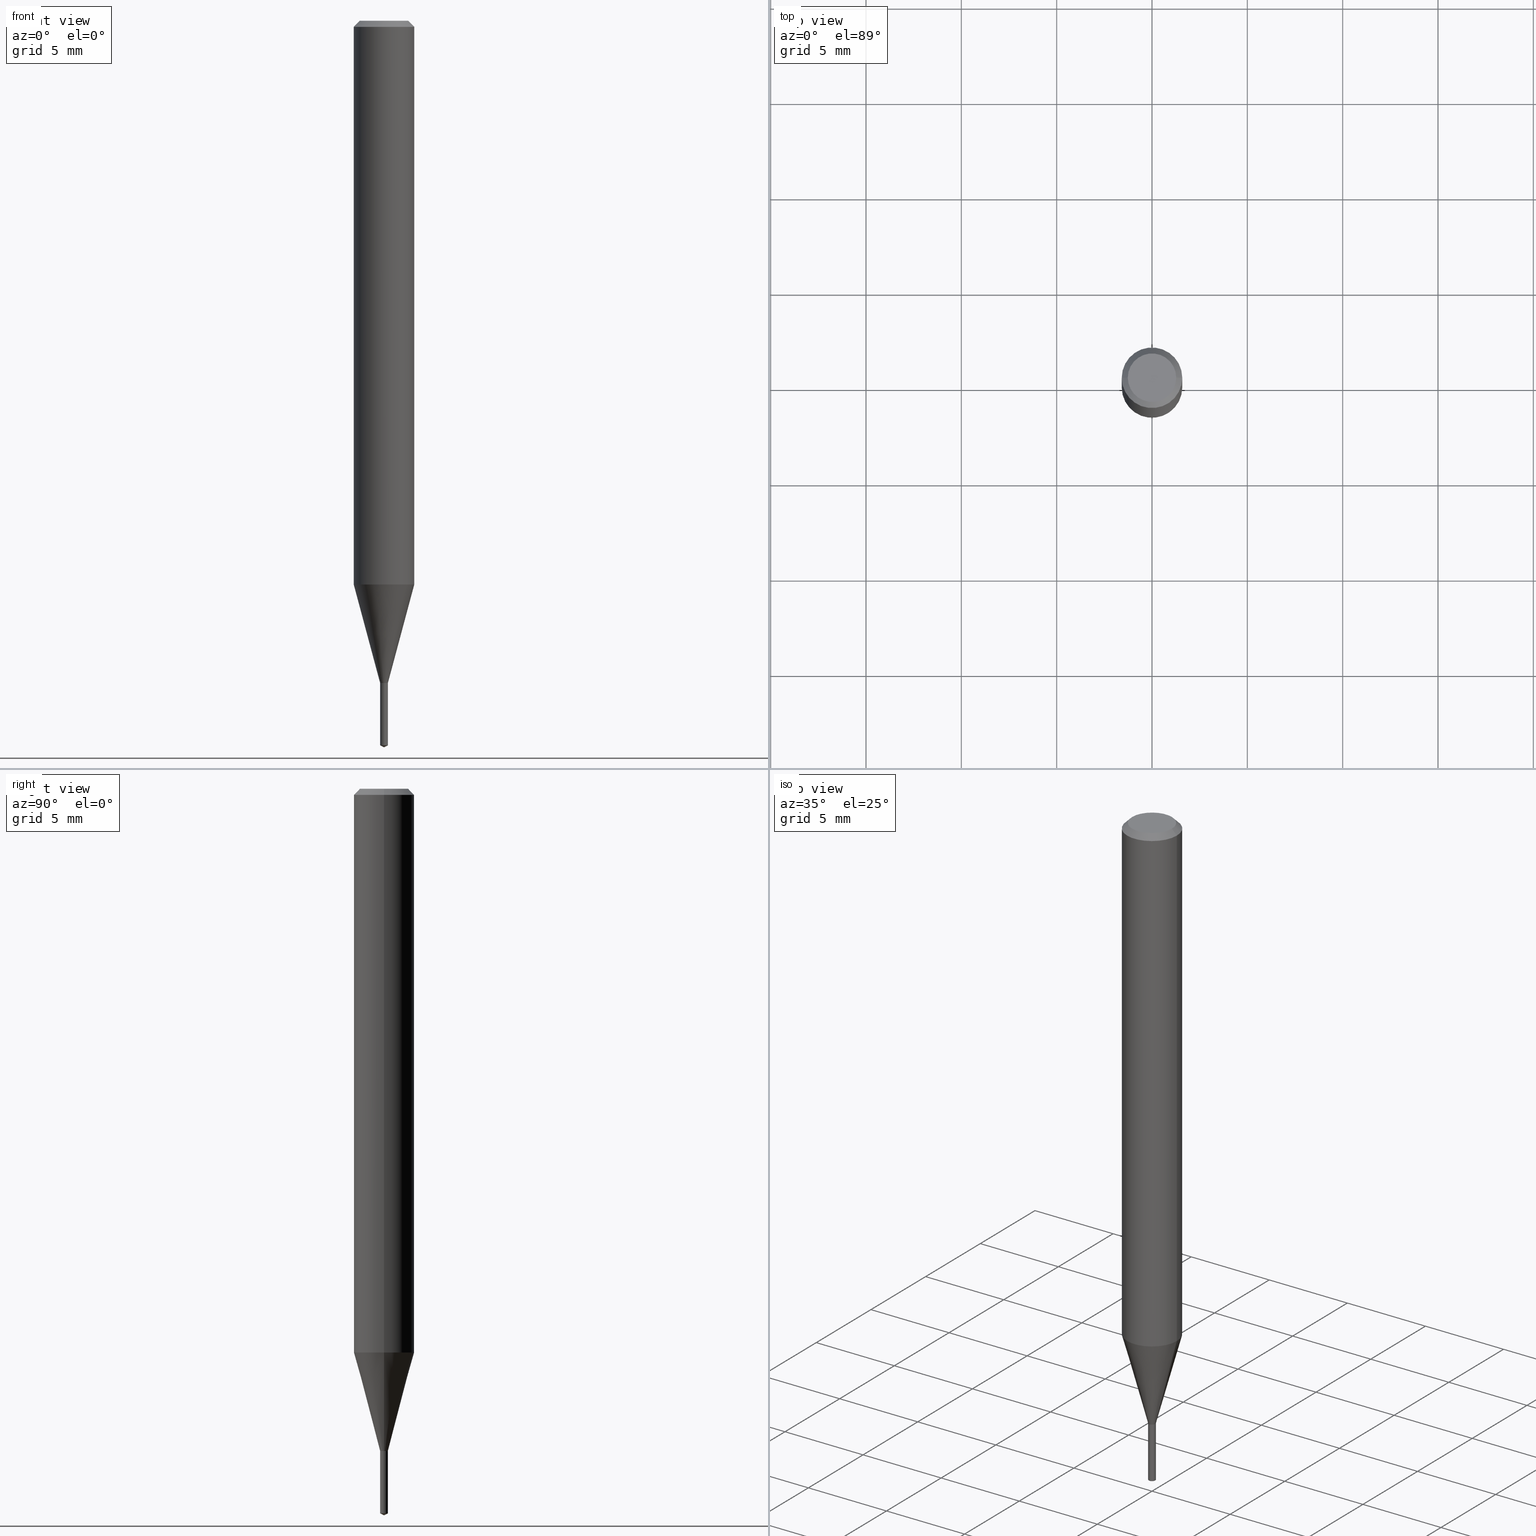
[diagram: canonical four-view strip — front | top / right | iso, engineering-drawing reading convention]
A machine part, canonical four-view strip (front | top / right | iso — engineering-drawing reading convention). The complete STEP part file that produces these views, byte-faithful:
ISO-10303-21;
HEADER;
FILE_DESCRIPTION (( 'STEP AP203' ),
    '1' );
FILE_NAME ('07117.STEP',
    '2024-04-23T19:33:08',
    ( '' ),
    ( '' ),
    'SwSTEP 2.0',
    'SolidWorks 2023',
    '' );
FILE_SCHEMA (( 'CONFIG_CONTROL_DESIGN' ));
ENDSEC;

DATA;
#1 = PRODUCT_DEFINITION ( 'UNKNOWN', '', #385, #382 ) ;
#2 = LINE ( 'NONE', #108, #76 ) ;
#3 = AXIS2_PLACEMENT_3D ( 'NONE', #303, #451, #258 ) ;
#4 = EDGE_CURVE ( 'NONE', #106, #158, #163, .T. ) ;
#5 = EDGE_LOOP ( 'NONE', ( #293, #153 ) ) ;
#6 = SHAPE_DEFINITION_REPRESENTATION ( #213, #175 ) ;
#7 = FACE_OUTER_BOUND ( 'NONE', #194, .T. ) ;
#8 = ORIENTED_EDGE ( 'NONE', *, *, #47, .F. ) ;
#9 = EDGE_CURVE ( 'NONE', #73, #483, #321, .T. ) ;
#10 = CYLINDRICAL_SURFACE ( 'NONE', #359, 0.06250000000000006939 ) ;
#11 = ORIENTED_EDGE ( 'NONE', *, *, #204, .F. ) ;
#12 = LENGTH_MEASURE_WITH_UNIT ( LENGTH_MEASURE( 0.02539999999999999897 ), #431 );
#13 = VECTOR ( 'NONE', #23, 39.37007874015748854 ) ;
#14 = AXIS2_PLACEMENT_3D ( 'NONE', #101, #183, #331 ) ;
#15 = ORIENTED_EDGE ( 'NONE', *, *, #365, .F. ) ;
#16 = ADVANCED_FACE ( 'NONE', ( #169 ), #290, .F. ) ;
#17 = APPLICATION_PROTOCOL_DEFINITION ( 'international standard', 'config_control_design', 1994, #456 ) ;
#18 = ORIENTED_EDGE ( 'NONE', *, *, #27, .T. ) ;
#19 = MECHANICAL_CONTEXT ( 'NONE', #456, 'mechanical' ) ;
#20 = DIRECTION ( 'NONE',  ( -2.445468806185136597E-29, 3.491481338843145583E-15, 1.000000000000000000 ) ) ;
#21 = PRODUCT ( '07117', '07117', '', ( #19 ) ) ;
#22 = CIRCLE ( 'NONE', #3, 0.04999999999999999584 ) ;
#23 = DIRECTION ( 'NONE',  ( 0.2588190451025279559, 1.565188264969569508E-15, 0.9659258262890664248 ) ) ;
#24 = SECURITY_CLASSIFICATION ( '', '', #372 ) ;
#25 = APPLICATION_PROTOCOL_DEFINITION ( 'international standard', 'config_control_design', 1994, #470 ) ;
#26 = CARTESIAN_POINT ( 'NONE',  ( -0.008000000000000000167, -4.433027008824534851E-15, -1.204500000000000126 ) ) ;
#27 = EDGE_CURVE ( 'NONE', #158, #310, #257, .T. ) ;
#28 = DIRECTION ( 'NONE',  ( 1.000000000000000000, -6.982962677686211490E-15, 0.000000000000000000 ) ) ;
#29 = DIRECTION ( 'NONE',  ( -2.445468806185136597E-29, 3.491481338843145583E-15, 1.000000000000000000 ) ) ;
#30 = CIRCLE ( 'NONE', #346, 0.008000000000000001901 ) ;
#31 = DIRECTION ( 'NONE',  ( -2.442064184349959249E-29, 3.496356951090160448E-15, 1.000000000000000000 ) ) ;
#32 = DIRECTION ( 'NONE',  ( -6.982962677686266711E-15, -1.000000000000000000, 0.000000000000000000 ) ) ;
#33 = FACE_OUTER_BOUND ( 'NONE', #246, .T. ) ;
#34 = CIRCLE ( 'NONE', #398, 0.008000000000000000167 ) ;
#35 = COORDINATED_UNIVERSAL_TIME_OFFSET ( 5, 0, .BEHIND. ) ;
#36 = DIRECTION ( 'NONE',  ( -2.445468806185136597E-29, 3.491481338843145583E-15, 1.000000000000000000 ) ) ;
#37 = DIRECTION ( 'NONE',  ( -2.445468806185136597E-29, 3.491481338843145583E-15, 1.000000000000000000 ) ) ;
#38 = CC_DESIGN_PERSON_AND_ORGANIZATION_ASSIGNMENT ( #205, #125, ( #1 ) ) ;
#39 = CARTESIAN_POINT ( 'NONE',  ( 0.000000000000000000, 0.000000000000000000, 0.000000000000000000 ) ) ;
#40 = ORIENTED_EDGE ( 'NONE', *, *, #147, .F. ) ;
#41 = LINE ( 'NONE', #202, #260 ) ;
#42 = VERTEX_POINT ( 'NONE', #397 ) ;
#43 = AXIS2_PLACEMENT_3D ( 'NONE', #445, #334, #487 ) ;
#44 = CALENDAR_DATE ( 2024, 23, 4 ) ;
#45 = CC_DESIGN_APPROVAL ( #250, ( #1 ) ) ;
#46 = CARTESIAN_POINT ( 'NONE',  ( 0.008000000000000000167, -5.586370142149013566E-17, 3.900941420636748599E-31 ) ) ;
#47 = EDGE_CURVE ( 'NONE', #316, #279, #137, .T. ) ;
#48 = DIRECTION ( 'NONE',  ( -2.445468806185136597E-29, 3.491481338843145583E-15, 1.000000000000000000 ) ) ;
#49 = CALENDAR_DATE ( 2024, 23, 4 ) ;
#50 = DIRECTION ( 'NONE',  ( -2.445468806185136597E-29, 3.491481338843145583E-15, 1.000000000000000000 ) ) ;
#51 = EDGE_LOOP ( 'NONE', ( #386, #348, #376, #369 ) ) ;
#52 = APPROVAL_DATE_TIME ( #86, #250 ) ;
#53 = ORIENTED_EDGE ( 'NONE', *, *, #466, .T. ) ;
#54 = CC_DESIGN_APPROVAL ( #177, ( #385 ) ) ;
#55 = ORIENTED_EDGE ( 'NONE', *, *, #272, .F. ) ;
#56 = EDGE_CURVE ( 'NONE', #244, #279, #373, .T. ) ;
#57 = CARTESIAN_POINT ( 'NONE',  ( 0.06250000000000006939, -4.364351673553921624E-16, 3.047610484872463374E-30 ) ) ;
#58 = CARTESIAN_POINT ( 'NONE',  ( -5.586370142145356456E-17, -0.008000000000005228623, -1.496269538734759985 ) ) ;
#59 = DIRECTION ( 'NONE',  ( -2.445468806185136597E-29, 3.491481338843145583E-15, 1.000000000000000000 ) ) ;
#60 = MANIFOLD_SOLID_BREP ( 'Body-Move/Copy2[2]', #144 ) ;
#61 = AXIS2_PLACEMENT_3D ( 'NONE', #66, #439, #400 ) ;
#62 = EDGE_CURVE ( 'NONE', #310, #408, #122, .T. ) ;
#63 = CARTESIAN_POINT ( 'NONE',  ( 2.946789911453089913E-29, -4.207235013305990839E-15, -1.205000000000000071 ) ) ;
#64 = AXIS2_PLACEMENT_3D ( 'NONE', #219, #37, #447 ) ;
#65 = DIRECTION ( 'NONE',  ( -2.442064184349959249E-29, 3.496356951090160842E-15, 1.000000000000000000 ) ) ;
#66 = CARTESIAN_POINT ( 'NONE',  ( 2.846533591678647944E-29, -4.064095559345990057E-15, -1.164003230987501691 ) ) ;
#67 = CARTESIAN_POINT ( 'NONE',  ( -0.06250000000000000000, -1.609780328190700812E-15, -0.01250000000000008570 ) ) ;
#68 = AXIS2_PLACEMENT_3D ( 'NONE', #261, #222, #368 ) ;
#69 = AXIS2_PLACEMENT_3D ( 'NONE', #200, #374, #262 ) ;
#70 = DIRECTION ( 'NONE',  ( -6.982962677686266711E-15, -1.000000000000000000, 0.000000000000000000 ) ) ;
#71 = ORIENTED_EDGE ( 'NONE', *, *, #234, .T. ) ;
#72 = DIRECTION ( 'NONE',  ( -2.442064184349959249E-29, 3.496356951090160448E-15, 1.000000000000000000 ) ) ;
#73 = VERTEX_POINT ( 'NONE', #363 ) ;
#74 = CARTESIAN_POINT ( 'NONE',  ( -5.586370142146066431E-17, -0.008000000000004208606, -1.205000000000000071 ) ) ;
#75 = ADVANCED_FACE ( 'NONE', ( #481 ), #178, .T. ) ;
#76 = VECTOR ( 'NONE', #152, 39.37007874015748143 ) ;
#77 = DIRECTION ( 'NONE',  ( -1.000000000000000000, 6.982962677686265922E-15, -4.876176775795935793E-29 ) ) ;
#78 = LINE ( 'NONE', #380, #208 ) ;
#79 = DIRECTION ( 'NONE',  ( -2.442064184349959249E-29, 3.496356951090160448E-15, 1.000000000000000000 ) ) ;
#80 = ORIENTED_EDGE ( 'NONE', *, *, #328, .F. ) ;
#81 = CALENDAR_DATE ( 2024, 23, 4 ) ;
#82 = FACE_OUTER_BOUND ( 'NONE', #332, .T. ) ;
#83 = ORIENTED_EDGE ( 'NONE', *, *, #4, .F. ) ;
#84 = LOCAL_TIME ( 15, 33, 8.000000000000000000, #304 ) ;
#85 = VERTEX_POINT ( 'NONE', #435 ) ;
#86 = DATE_AND_TIME ( #423, #267 ) ;
#87 = ORIENTED_EDGE ( 'NONE', *, *, #164, .T. ) ;
#88 = ORIENTED_EDGE ( 'NONE', *, *, #466, .F. ) ;
#89 = ADVANCED_FACE ( 'NONE', ( #131 ), #318, .F. ) ;
#90 = CARTESIAN_POINT ( 'NONE',  ( -8.265746106709734507E-48, 1.180129479067563789E-33, 3.380025165646692144E-19 ) ) ;
#91 = ORIENTED_EDGE ( 'NONE', *, *, #147, .T. ) ;
#92 = DIRECTION ( 'NONE',  ( -2.445468806185136597E-29, 3.491481338843145583E-15, 1.000000000000000000 ) ) ;
#93 = CARTESIAN_POINT ( 'NONE',  ( 0.000000000000000000, 0.000000000000000000, 0.000000000000000000 ) ) ;
#94 = DIRECTION ( 'NONE',  ( 1.000000000000000000, -6.982962677686265922E-15, 4.876194921942043128E-29 ) ) ;
#95 = DIRECTION ( 'NONE',  ( -2.445468806185136597E-29, 3.491481338843145583E-15, 1.000000000000000000 ) ) ;
#96 = AXIS2_PLACEMENT_3D ( 'NONE', #325, #412, #340 ) ;
#97 = DIRECTION ( 'NONE',  ( 1.000000000000000000, -6.982962677686271444E-15, 0.000000000000000000 ) ) ;
#98 = DIRECTION ( 'NONE',  ( -6.982962677686266711E-15, -1.000000000000000000, 3.520397390770520529E-15 ) ) ;
#99 = DIRECTION ( 'NONE',  ( 1.000000000000000000, -6.982962677686266711E-15, 0.000000000000000000 ) ) ;
#100 = PRODUCT_RELATED_PRODUCT_CATEGORY ( 'detail', '', ( #21 ) ) ;
#101 = CARTESIAN_POINT ( 'NONE',  ( 2.946789911453089913E-29, -4.207235013305990839E-15, -1.205000000000000071 ) ) ;
#102 = AXIS2_PLACEMENT_3D ( 'NONE', #299, #72, #378 ) ;
#103 = EDGE_LOOP ( 'NONE', ( #87, #249, #355, #275 ) ) ;
#104 = LOCAL_TIME ( 15, 33, 8.000000000000000000, #278 ) ;
#105 = DIRECTION ( 'NONE',  ( 1.000000000000000000, -6.982962677686268288E-15, 0.000000000000000000 ) ) ;
#106 = VERTEX_POINT ( 'NONE', #218 ) ;
#107 = ADVANCED_FACE ( 'NONE', ( #134 ), #352, .T. ) ;
#108 = CARTESIAN_POINT ( 'NONE',  ( 0.06250000000000000000, -4.724246415962603826E-16, -0.01250000000000008570 ) ) ;
#109 = ORIENTED_EDGE ( 'NONE', *, *, #365, .T. ) ;
#110 = DIRECTION ( 'NONE',  ( 6.439704144417008265E-15, 0.9063077870366490485, 0.4226182617407012732 ) ) ;
#111 = ORIENTED_EDGE ( 'NONE', *, *, #132, .T. ) ;
#112 = AXIS2_PLACEMENT_3D ( 'NONE', #489, #296, #105 ) ;
#113 = AXIS2_PLACEMENT_3D ( 'NONE', #342, #36, #231 ) ;
#114 = PERSON_AND_ORGANIZATION ( #488, #480 ) ;
#115 = DIRECTION ( 'NONE',  ( 2.445468806185136597E-29, -3.491481338843145583E-15, -1.000000000000000000 ) ) ;
#116 = ORIENTED_EDGE ( 'NONE', *, *, #458, .T. ) ;
#117 = DIRECTION ( 'NONE',  ( -0.7071067811865218156, 7.493145998870261075E-15, 0.7071067811865732189 ) ) ;
#118 = ORIENTED_EDGE ( 'NONE', *, *, #391, .F. ) ;
#119 = CC_DESIGN_PERSON_AND_ORGANIZATION_ASSIGNMENT ( #433, #360, ( #21 ) ) ;
#120 = DATE_AND_TIME ( #81, #104 ) ;
#121 = ORIENTED_EDGE ( 'NONE', *, *, #371, .F. ) ;
#122 = CIRCLE ( 'NONE', #61, 0.06250000000000013878 ) ;
#123 = DIRECTION ( 'NONE',  ( 1.000000000000000000, -6.982962677686211490E-15, 0.000000000000000000 ) ) ;
#124 = ORIENTED_EDGE ( 'NONE', *, *, #4, .T. ) ;
#125 = PERSON_AND_ORGANIZATION_ROLE ( 'creator' ) ;
#126 = EDGE_CURVE ( 'NONE', #42, #417, #414, .T. ) ;
#127 = ORIENTED_EDGE ( 'NONE', *, *, #192, .T. ) ;
#128 = EDGE_LOOP ( 'NONE', ( #223, #442, #350 ) ) ;
#129 = CONICAL_SURFACE ( 'NONE', #102, 84.42940631927274353, 1.134464013796308679 ) ;
#130 = CIRCLE ( 'NONE', #461, 0.04999999999999999584 ) ;
#131 = FACE_OUTER_BOUND ( 'NONE', #5, .T. ) ;
#132 = EDGE_CURVE ( 'NONE', #279, #244, #154, .T. ) ;
#133 = CARTESIAN_POINT ( 'NONE',  ( 2.945567177049997112E-29, -4.205489272636569336E-15, -1.204500000000000126 ) ) ;
#134 = FACE_OUTER_BOUND ( 'NONE', #427, .T. ) ;
#135 = EDGE_CURVE ( 'NONE', #408, #279, #216, .T. ) ;
#136 = AXIS2_PLACEMENT_3D ( 'NONE', #291, #140, #98 ) ;
#137 = LINE ( 'NONE', #329, #460 ) ;
#138 = CONICAL_SURFACE ( 'NONE', #155, 0.06250000000000000000, 0.7853981633974449483 ) ;
#139 = APPROVAL ( #301, 'UNSPECIFIED' ) ;
#140 = DIRECTION ( 'NONE',  ( -2.442064184349959249E-29, 3.496356951090160448E-15, 1.000000000000000000 ) ) ;
#141 = CARTESIAN_POINT ( 'NONE',  ( -0.04999999999999999584, 3.709698922520826725E-16, 3.380025165621512536E-19 ) ) ;
#142 = VERTEX_POINT ( 'NONE', #26 ) ;
#143 = PLANE ( 'NONE',  #228 ) ;
#144 = CLOSED_SHELL ( 'NONE', ( #217, #343, #353, #452, #157, #229, #357, #255, #406, #298, #16, #75 ) ) ;
#145 = VERTEX_POINT ( 'NONE', #58 ) ;
#146 = CC_DESIGN_APPROVAL ( #139, ( #24 ) ) ;
#147 = EDGE_CURVE ( 'NONE', #142, #392, #34, .T. ) ;
#148 = CYLINDRICAL_SURFACE ( 'NONE', #384, 0.06250000000000006939 ) ;
#149 = EDGE_LOOP ( 'NONE', ( #53, #281 ) ) ;
#150 = FACE_OUTER_BOUND ( 'NONE', #206, .T. ) ;
#151 = PERSON_AND_ORGANIZATION_ROLE ( 'classification_officer' ) ;
#152 = DIRECTION ( 'NONE',  ( 0.7071067811865451302, -7.319954787623248157E-15, -0.7071067811865499042 ) ) ;
#153 = ORIENTED_EDGE ( 'NONE', *, *, #266, .T. ) ;
#154 = CIRCLE ( 'NONE', #449, 0.06250000000000000000 ) ;
#155 = AXIS2_PLACEMENT_3D ( 'NONE', #264, #455, #274 ) ;
#156 = PERSON_AND_ORGANIZATION ( #488, #480 ) ;
#157 = ADVANCED_FACE ( 'NONE', ( #211 ), #356, .F. ) ;
#158 = VERTEX_POINT ( 'NONE', #251 ) ;
#159 = DIRECTION ( 'NONE',  ( 0.7071067811865218156, -2.468850131081987665E-15, 0.7071067811865732189 ) ) ;
#160 = ORIENTED_EDGE ( 'NONE', *, *, #164, .F. ) ;
#161 = CARTESIAN_POINT ( 'NONE',  ( 3.658088819989380268E-29, -5.225617289702093379E-15, -1.496269538734759985 ) ) ;
#162 = EDGE_LOOP ( 'NONE', ( #454, #457, #225, #390 ) ) ;
#163 = CIRCLE ( 'NONE', #170, 0.008000000000000000167 ) ;
#164 = EDGE_CURVE ( 'NONE', #158, #106, #187, .T. ) ;
#165 = ORIENTED_EDGE ( 'NONE', *, *, #371, .T. ) ;
#166 = APPROVAL_STATUS ( 'not_yet_approved' ) ;
#167 = ORIENTED_EDGE ( 'NONE', *, *, #282, .F. ) ;
#168 = DIRECTION ( 'NONE',  ( -2.445468806185136597E-29, 3.491481338843145583E-15, 1.000000000000000000 ) ) ;
#169 = FACE_OUTER_BOUND ( 'NONE', #422, .T. ) ;
#170 = AXIS2_PLACEMENT_3D ( 'NONE', #239, #48, #201 ) ;
#171 = APPROVAL_PERSON_ORGANIZATION ( #156, #177, #242 ) ;
#172 = DIRECTION ( 'NONE',  ( 2.442064184349958409E-29, -3.496356951090160842E-15, -1.000000000000000000 ) ) ;
#173 = PERSON_AND_ORGANIZATION ( #488, #480 ) ;
#174 = DIRECTION ( 'NONE',  ( -6.328713451373353601E-15, -0.9063077870366461619, 0.4226182617407076014 ) ) ;
#175 = ADVANCED_BREP_SHAPE_REPRESENTATION ( '07117', ( #377, #60, #312 ), #214 ) ;
#176 = DIRECTION ( 'NONE',  ( -2.445468806185136597E-29, 3.491481338843145583E-15, 1.000000000000000000 ) ) ;
#177 = APPROVAL ( #338, 'UNSPECIFIED' ) ;
#178 = CONICAL_SURFACE ( 'NONE', #443, 0.007499999999999999722, 0.7853981633974119747 ) ;
#179 = DIRECTION ( 'NONE',  ( -2.438088387897960049E-29, 3.491481338843145188E-15, 1.000000000000000000 ) ) ;
#180 = CONICAL_SURFACE ( 'NONE', #220, 0.06250000000000000000, 0.7853981633974449483 ) ;
#181 = EDGE_CURVE ( 'NONE', #85, #145, #287, .T. ) ;
#182 = CYLINDRICAL_SURFACE ( 'NONE', #326, 0.008000000000000000167 ) ;
#183 = DIRECTION ( 'NONE',  ( -2.445468806185136597E-29, 3.491481338843145583E-15, 1.000000000000000000 ) ) ;
#184 = CC_DESIGN_DATE_AND_TIME_ASSIGNMENT ( #199, #189, ( #24 ) ) ;
#185 = EDGE_LOOP ( 'NONE', ( #83, #313, #91, #118 ) ) ;
#186 = CARTESIAN_POINT ( 'NONE',  ( 2.946789911453089913E-29, -4.207235013305990839E-15, -1.205000000000000071 ) ) ;
#187 = CIRCLE ( 'NONE', #311, 0.008000000000000000167 ) ;
#188 = VECTOR ( 'NONE', #441, 39.37007874015748854 ) ;
#189 = DATE_TIME_ROLE ( 'classification_date' ) ;
#190 = LINE ( 'NONE', #482, #405 ) ;
#191 = ORIENTED_EDGE ( 'NONE', *, *, #322, .F. ) ;
#192 = EDGE_CURVE ( 'NONE', #392, #142, #364, .T. ) ;
#193 = CARTESIAN_POINT ( 'NONE',  ( 0.04999999999999999584, -4.077247707424184705E-16, 3.380025165673154903E-19 ) ) ;
#194 = EDGE_LOOP ( 'NONE', ( #191, #124, #18, #167 ) ) ;
#195 = DATE_TIME_ROLE ( 'creation_date' ) ;
#196 = ADVANCED_FACE ( 'NONE', ( #337 ), #182, .T. ) ;
#197 = ORIENTED_EDGE ( 'NONE', *, *, #135, .F. ) ;
#198 = CIRCLE ( 'NONE', #240, 0.008000000000000000167 ) ;
#199 = DATE_AND_TIME ( #49, #327 ) ;
#200 = CARTESIAN_POINT ( 'NONE',  ( 2.946789911453089913E-29, -4.207235013305990839E-15, -1.205000000000000071 ) ) ;
#201 = DIRECTION ( 'NONE',  ( 1.000000000000000000, -6.982962677686211490E-15, 0.000000000000000000 ) ) ;
#202 = CARTESIAN_POINT ( 'NONE',  ( -0.007499999999999999722, -4.153944308123983672E-15, -1.205000000000000071 ) ) ;
#203 = VERTEX_POINT ( 'NONE', #193 ) ;
#204 = EDGE_CURVE ( 'NONE', #145, #236, #295, .T. ) ;
#205 = PERSON_AND_ORGANIZATION ( #488, #480 ) ;
#206 = EDGE_LOOP ( 'NONE', ( #197, #271, #116, #464 ) ) ;
#207 = CONICAL_SURFACE ( 'NONE', #112, 0.007499999999999999722, 0.7853981633974119747 ) ;
#208 = VECTOR ( 'NONE', #159, 39.37007874015748143 ) ;
#209 = ORIENTED_EDGE ( 'NONE', *, *, #477, .F. ) ;
#210 = EDGE_CURVE ( 'NONE', #145, #73, #344, .T. ) ;
#211 = FACE_OUTER_BOUND ( 'NONE', #185, .T. ) ;
#212 = CARTESIAN_POINT ( 'NONE',  ( 3.663096276524938454E-29, -5.244535426635240672E-15, -1.500000000000000222 ) ) ;
#213 = PRODUCT_DEFINITION_SHAPE ( 'NONE', 'NONE',  #1 ) ;
#214 =( GEOMETRIC_REPRESENTATION_CONTEXT ( 3 ) GLOBAL_UNCERTAINTY_ASSIGNED_CONTEXT ( ( #233 ) ) GLOBAL_UNIT_ASSIGNED_CONTEXT ( ( #354, #474, #389 ) ) REPRESENTATION_CONTEXT ( 'NONE', 'WORKASPACE' ) );
#215 = DIRECTION ( 'NONE',  ( 1.000000000000000000, -6.982962677686265922E-15, 4.876176775795935793E-29 ) ) ;
#216 = LINE ( 'NONE', #475, #421 ) ;
#217 = ADVANCED_FACE ( 'NONE', ( #444 ), #207, .T. ) ;
#218 = CARTESIAN_POINT ( 'NONE',  ( -0.008000000000000000167, -4.433027008824534851E-15, -1.367399999999999949 ) ) ;
#219 = CARTESIAN_POINT ( 'NONE',  ( 2.846533591678647944E-29, -4.064095559345990057E-15, -1.164003230987501691 ) ) ;
#220 = AXIS2_PLACEMENT_3D ( 'NONE', #269, #115, #302 ) ;
#221 = CC_DESIGN_PERSON_AND_ORGANIZATION_ASSIGNMENT ( #490, #226, ( #385 ) ) ;
#222 = DIRECTION ( 'NONE',  ( -2.442064184349959249E-29, 3.496356951090160448E-15, 1.000000000000000000 ) ) ;
#223 = ORIENTED_EDGE ( 'NONE', *, *, #286, .F. ) ;
#224 = DIRECTION ( 'NONE',  ( -2.445468806185136597E-29, 3.491481338843145583E-15, 1.000000000000000000 ) ) ;
#225 = ORIENTED_EDGE ( 'NONE', *, *, #204, .T. ) ;
#226 = PERSON_AND_ORGANIZATION_ROLE ( 'creator' ) ;
#227 = DIRECTION ( 'NONE',  ( 1.000000000000000000, -6.982962677686266711E-15, 4.876176775795935793E-29 ) ) ;
#228 = AXIS2_PLACEMENT_3D ( 'NONE', #265, #416, #77 ) ;
#229 = ADVANCED_FACE ( 'NONE', ( #33 ), #410, .F. ) ;
#230 = APPROVAL_DATE_TIME ( #306, #139 ) ;
#231 = DIRECTION ( 'NONE',  ( 1.000000000000000000, -6.982962677686211490E-15, 0.000000000000000000 ) ) ;
#232 = FACE_OUTER_BOUND ( 'NONE', #128, .T. ) ;
#233 = UNCERTAINTY_MEASURE_WITH_UNIT (LENGTH_MEASURE( 1.000000000000000082E-05 ), #354, 'distance_accuracy_value', 'NONE');
#234 = EDGE_CURVE ( 'NONE', #203, #244, #2, .T. ) ;
#235 = DIRECTION ( 'NONE',  ( -6.982962677686266711E-15, -1.000000000000000000, 0.000000000000000000 ) ) ;
#236 = VERTEX_POINT ( 'NONE', #74 ) ;
#237 = COORDINATED_UNIVERSAL_TIME_OFFSET ( 5, 0, .BEHIND. ) ;
#238 = CYLINDRICAL_SURFACE ( 'NONE', #69, 0.008000000000000000167 ) ;
#239 = CARTESIAN_POINT ( 'NONE',  ( 3.343934045577555938E-29, -4.774251582734117286E-15, -1.367399999999999949 ) ) ;
#240 = AXIS2_PLACEMENT_3D ( 'NONE', #370, #375, #32 ) ;
#241 = LOCAL_TIME ( 15, 33, 8.000000000000000000, #237 ) ;
#242 = APPROVAL_ROLE ( '' ) ;
#243 = CARTESIAN_POINT ( 'NONE',  ( -0.007499999999999999722, -4.151295080949872471E-15, -1.205000000000000071 ) ) ;
#244 = VERTEX_POINT ( 'NONE', #330 ) ;
#245 = ORIENTED_EDGE ( 'NONE', *, *, #234, .F. ) ;
#246 = EDGE_LOOP ( 'NONE', ( #209, #160, #425, #127 ) ) ;
#247 = ADVANCED_FACE ( 'NONE', ( #232 ), #129, .T. ) ;
#248 = CIRCLE ( 'NONE', #14, 0.007499999999999999722 ) ;
#249 = ORIENTED_EDGE ( 'NONE', *, *, #322, .T. ) ;
#250 = APPROVAL ( #166, 'UNSPECIFIED' ) ;
#251 = CARTESIAN_POINT ( 'NONE',  ( 0.008000000000000000167, -4.830115284155606978E-15, -1.367399999999999949 ) ) ;
#252 = DIRECTION ( 'NONE',  ( -0.7071067811865451302, 2.468850131082231817E-15, -0.7071067811865499042 ) ) ;
#253 = VECTOR ( 'NONE', #65, 39.37007874015748143 ) ;
#254 = AXIS2_PLACEMENT_3D ( 'NONE', #426, #92, #123 ) ;
#255 = ADVANCED_FACE ( 'NONE', ( #150 ), #148, .T. ) ;
#256 = CARTESIAN_POINT ( 'NONE',  ( 3.056836007731441853E-31, -4.364351673553962300E-17, -0.01250000000000008570 ) ) ;
#257 = LINE ( 'NONE', #432, #13 ) ;
#258 = DIRECTION ( 'NONE',  ( 1.000000000000000000, -6.982962677686265922E-15, 4.876194921942043128E-29 ) ) ;
#259 = AXIS2_PLACEMENT_3D ( 'NONE', #478, #95, #472 ) ;
#260 = VECTOR ( 'NONE', #117, 39.37007874015748143 ) ;
#261 = CARTESIAN_POINT ( 'NONE',  ( 3.658088819989380268E-29, -5.225617289702093379E-15, -1.496269538734759985 ) ) ;
#262 = DIRECTION ( 'NONE',  ( -6.982962677686266711E-15, -1.000000000000000000, 0.000000000000000000 ) ) ;
#263 = FACE_OUTER_BOUND ( 'NONE', #149, .T. ) ;
#264 = CARTESIAN_POINT ( 'NONE',  ( 3.056836007731441853E-31, -4.364351673553962300E-17, -0.01250000000000008570 ) ) ;
#265 = CARTESIAN_POINT ( 'NONE',  ( -4.132873053354867254E-48, 5.900647395337818946E-34, 1.690012582823346072E-19 ) ) ;
#266 = EDGE_CURVE ( 'NONE', #483, #236, #198, .T. ) ;
#267 = LOCAL_TIME ( 15, 33, 8.000000000000000000, #276 ) ;
#268 = PERSON_AND_ORGANIZATION_ROLE ( 'design_supplier' ) ;
#269 = CARTESIAN_POINT ( 'NONE',  ( 3.056836007731441853E-31, -4.364351673553962300E-17, -0.01250000000000008570 ) ) ;
#270 = CARTESIAN_POINT ( 'NONE',  ( 0.008000000000000000167, -4.261352974058059028E-15, -1.204500000000000126 ) ) ;
#271 = ORIENTED_EDGE ( 'NONE', *, *, #282, .T. ) ;
#272 = EDGE_CURVE ( 'NONE', #203, #316, #22, .T. ) ;
#273 = DATE_AND_TIME ( #44, #241 ) ;
#274 = DIRECTION ( 'NONE',  ( -1.000000000000000000, 6.982962677686266711E-15, 0.000000000000000000 ) ) ;
#275 = ORIENTED_EDGE ( 'NONE', *, *, #27, .F. ) ;
#276 = COORDINATED_UNIVERSAL_TIME_OFFSET ( 5, 0, .BEHIND. ) ;
#277 = ORIENTED_EDGE ( 'NONE', *, *, #328, .T. ) ;
#278 = COORDINATED_UNIVERSAL_TIME_OFFSET ( 5, 0, .BEHIND. ) ;
#279 = VERTEX_POINT ( 'NONE', #67 ) ;
#280 = LINE ( 'NONE', #393, #430 ) ;
#281 = ORIENTED_EDGE ( 'NONE', *, *, #272, .T. ) ;
#282 = EDGE_CURVE ( 'NONE', #408, #310, #399, .T. ) ;
#283 = CARTESIAN_POINT ( 'NONE',  ( 2.946789911453089913E-29, -4.207235013305990839E-15, -1.205000000000000071 ) ) ;
#284 = DIRECTION ( 'NONE',  ( 0.000000000000000000, 0.000000000000000000, 1.000000000000000000 ) ) ;
#285 = CARTESIAN_POINT ( 'NONE',  ( 3.056836007731441853E-31, -4.364351673553962300E-17, -0.01250000000000008570 ) ) ;
#286 = EDGE_CURVE ( 'NONE', #85, #73, #190, .T. ) ;
#287 = LINE ( 'NONE', #212, #479 ) ;
#288 = AXIS2_PLACEMENT_3D ( 'NONE', #476, #172, #401 ) ;
#289 = AXIS2_PLACEMENT_3D ( 'NONE', #418, #79, #235 ) ;
#290 = PLANE ( 'NONE',  #471 ) ;
#291 = CARTESIAN_POINT ( 'NONE',  ( -9.247706038054002126E-28, 1.324131881542389877E-13, 37.87007874015748143 ) ) ;
#292 = LINE ( 'NONE', #407, #188 ) ;
#293 = ORIENTED_EDGE ( 'NONE', *, *, #335, .T. ) ;
#294 = APPROVAL_PERSON_ORGANIZATION ( #486, #139, #336 ) ;
#295 = LINE ( 'NONE', #403, #436 ) ;
#296 = DIRECTION ( 'NONE',  ( -2.445468806185136597E-29, 3.491481338843145583E-15, 1.000000000000000000 ) ) ;
#297 = PERSON_AND_ORGANIZATION ( #488, #480 ) ;
#298 = ADVANCED_FACE ( 'NONE', ( #263 ), #143, .F. ) ;
#299 = CARTESIAN_POINT ( 'NONE',  ( -9.247706038054002126E-28, 1.324131881542389877E-13, 37.87007874015748143 ) ) ;
#300 = ORIENTED_EDGE ( 'NONE', *, *, #286, .T. ) ;
#301 = APPROVAL_STATUS ( 'not_yet_approved' ) ;
#302 = DIRECTION ( 'NONE',  ( -1.000000000000000000, 6.982962677686266711E-15, 0.000000000000000000 ) ) ;
#303 = CARTESIAN_POINT ( 'NONE',  ( -8.265746106709734507E-48, 1.180129479067563789E-33, 3.380025165646692144E-19 ) ) ;
#304 = COORDINATED_UNIVERSAL_TIME_OFFSET ( 5, 0, .BEHIND. ) ;
#305 = ORIENTED_EDGE ( 'NONE', *, *, #335, .F. ) ;
#306 = DATE_AND_TIME ( #347, #84 ) ;
#307 = FACE_OUTER_BOUND ( 'NONE', #448, .T. ) ;
#308 = ORIENTED_EDGE ( 'NONE', *, *, #181, .F. ) ;
#309 = DIRECTION ( 'NONE',  ( -2.442064184349959249E-29, 3.496356951090160448E-15, 1.000000000000000000 ) ) ;
#310 = VERTEX_POINT ( 'NONE', #367 ) ;
#311 = AXIS2_PLACEMENT_3D ( 'NONE', #395, #59, #28 ) ;
#312 = AXIS2_PLACEMENT_3D ( 'NONE', #463, #284, #396 ) ;
#313 = ORIENTED_EDGE ( 'NONE', *, *, #477, .T. ) ;
#314 = FACE_OUTER_BOUND ( 'NONE', #103, .T. ) ;
#315 = CC_DESIGN_PERSON_AND_ORGANIZATION_ASSIGNMENT ( #297, #151, ( #24 ) ) ;
#316 = VERTEX_POINT ( 'NONE', #141 ) ;
#317 = CARTESIAN_POINT ( 'NONE',  ( 5.684341886084466111E-17, 0.007999999999995793462, -1.205000000000000071 ) ) ;
#318 = PLANE ( 'NONE',  #288 ) ;
#319 = CLOSED_SHELL ( 'NONE', ( #402, #107, #247, #196, #89 ) ) ;
#320 = CONICAL_SURFACE ( 'NONE', #113, 0.008000000000000000167, 0.2617993877991569018 ) ;
#321 = LINE ( 'NONE', #394, #253 ) ;
#322 = EDGE_CURVE ( 'NONE', #106, #408, #292, .T. ) ;
#323 = APPROVAL_ROLE ( '' ) ;
#324 = DIRECTION ( 'NONE',  ( 1.000000000000000000, -6.982962677686268288E-15, 0.000000000000000000 ) ) ;
#325 = CARTESIAN_POINT ( 'NONE',  ( 2.945567177049997112E-29, -4.205489272636569336E-15, -1.204500000000000126 ) ) ;
#326 = AXIS2_PLACEMENT_3D ( 'NONE', #186, #31, #70 ) ;
#327 = LOCAL_TIME ( 15, 33, 8.000000000000000000, #35 ) ;
#328 = EDGE_CURVE ( 'NONE', #417, #42, #248, .T. ) ;
#329 = CARTESIAN_POINT ( 'NONE',  ( -0.06250000000000000000, 3.927916506198520587E-16, -0.01250000000000008570 ) ) ;
#330 = CARTESIAN_POINT ( 'NONE',  ( 0.06250000000000000000, -4.800786840909313294E-16, -0.01250000000000008570 ) ) ;
#331 = DIRECTION ( 'NONE',  ( 1.000000000000000000, -6.982962677686268288E-15, 0.000000000000000000 ) ) ;
#332 = EDGE_LOOP ( 'NONE', ( #453, #341, #305, #11 ) ) ;
#333 = CIRCLE ( 'NONE', #289, 0.008000000000000000167 ) ;
#334 = DIRECTION ( 'NONE',  ( -2.445468806185136597E-29, 3.491481338843145583E-15, 1.000000000000000000 ) ) ;
#335 = EDGE_CURVE ( 'NONE', #236, #483, #333, .T. ) ;
#336 = APPROVAL_ROLE ( '' ) ;
#337 = FACE_OUTER_BOUND ( 'NONE', #162, .T. ) ;
#338 = APPROVAL_STATUS ( 'not_yet_approved' ) ;
#339 = CARTESIAN_POINT ( 'NONE',  ( 0.000000000000000000, 0.000000000000000000, 0.000000000000000000 ) ) ;
#340 = DIRECTION ( 'NONE',  ( 1.000000000000000000, -6.982962677686271444E-15, 0.000000000000000000 ) ) ;
#341 = ORIENTED_EDGE ( 'NONE', *, *, #9, .T. ) ;
#342 = CARTESIAN_POINT ( 'NONE',  ( 3.343934045577555938E-29, -4.774251582734117286E-15, -1.367399999999999949 ) ) ;
#343 = ADVANCED_FACE ( 'NONE', ( #381 ), #180, .T. ) ;
#344 = CIRCLE ( 'NONE', #68, 0.008000000000000001901 ) ;
#345 = ORIENTED_EDGE ( 'NONE', *, *, #126, .F. ) ;
#346 = AXIS2_PLACEMENT_3D ( 'NONE', #161, #309, #411 ) ;
#347 = CALENDAR_DATE ( 2024, 23, 4 ) ;
#348 = ORIENTED_EDGE ( 'NONE', *, *, #135, .T. ) ;
#349 = DIRECTION ( 'NONE',  ( -2.445468806185136877E-29, 3.491481338843145188E-15, 1.000000000000000000 ) ) ;
#350 = ORIENTED_EDGE ( 'NONE', *, *, #424, .F. ) ;
#351 = ORIENTED_EDGE ( 'NONE', *, *, #210, .F. ) ;
#352 = CONICAL_SURFACE ( 'NONE', #136, 84.42940631927274353, 1.134464013796308679 ) ;
#353 = ADVANCED_FACE ( 'NONE', ( #459 ), #10, .T. ) ;
#354 =( CONVERSION_BASED_UNIT ( 'INCH', #12 ) LENGTH_UNIT ( ) NAMED_UNIT ( #468 ) );
#355 = ORIENTED_EDGE ( 'NONE', *, *, #62, .F. ) ;
#356 = CYLINDRICAL_SURFACE ( 'NONE', #404, 0.008000000000000000167 ) ;
#357 = ADVANCED_FACE ( 'NONE', ( #7 ), #320, .T. ) ;
#358 = DIRECTION ( 'NONE',  ( 1.000000000000000000, -6.982962677686266711E-15, 0.000000000000000000 ) ) ;
#359 = AXIS2_PLACEMENT_3D ( 'NONE', #339, #50, #387 ) ;
#360 = PERSON_AND_ORGANIZATION_ROLE ( 'design_owner' ) ;
#361 = DIRECTION ( 'NONE',  ( -2.445468806185136877E-29, 3.491481338843145188E-15, 1.000000000000000000 ) ) ;
#362 = DIRECTION ( 'NONE',  ( -2.445468806185136597E-29, 3.491481338843145583E-15, 1.000000000000000000 ) ) ;
#363 = CARTESIAN_POINT ( 'NONE',  ( 5.684341886084461180E-17, 0.007999999999994776914, -1.496269538734759985 ) ) ;
#364 = CIRCLE ( 'NONE', #96, 0.008000000000000000167 ) ;
#365 = EDGE_CURVE ( 'NONE', #42, #392, #78, .T. ) ;
#366 = VECTOR ( 'NONE', #469, 39.37007874015748143 ) ;
#367 = CARTESIAN_POINT ( 'NONE',  ( 0.06250000000000013878, -4.500530726701381726E-15, -1.164003230987501691 ) ) ;
#368 = DIRECTION ( 'NONE',  ( -6.982962677686265133E-15, -1.000000000000000000, 0.000000000000000000 ) ) ;
#369 = ORIENTED_EDGE ( 'NONE', *, *, #458, .F. ) ;
#370 = CARTESIAN_POINT ( 'NONE',  ( 2.946789911453089913E-29, -4.207235013305990839E-15, -1.205000000000000071 ) ) ;
#371 = EDGE_CURVE ( 'NONE', #417, #142, #41, .T. ) ;
#372 = SECURITY_CLASSIFICATION_LEVEL ( 'unclassified' ) ;
#373 = CIRCLE ( 'NONE', #485, 0.06250000000000000000 ) ;
#374 = DIRECTION ( 'NONE',  ( -2.442064184349959249E-29, 3.496356951090160448E-15, 1.000000000000000000 ) ) ;
#375 = DIRECTION ( 'NONE',  ( -2.442064184349959249E-29, 3.496356951090160448E-15, 1.000000000000000000 ) ) ;
#376 = ORIENTED_EDGE ( 'NONE', *, *, #56, .F. ) ;
#377 = MANIFOLD_SOLID_BREP ( 'Body-Move/Copy2[1]', #319 ) ;
#378 = DIRECTION ( 'NONE',  ( -6.982962677686266711E-15, -1.000000000000000000, 3.520397390770520529E-15 ) ) ;
#379 = ORIENTED_EDGE ( 'NONE', *, *, #56, .T. ) ;
#380 = CARTESIAN_POINT ( 'NONE',  ( 0.007499999999999999722, -4.259607233388637524E-15, -1.205000000000000071 ) ) ;
#381 = FACE_OUTER_BOUND ( 'NONE', #388, .T. ) ;
#382 = DESIGN_CONTEXT ( 'detailed design', #470, 'design' ) ;
#383 = EDGE_LOOP ( 'NONE', ( #467, #165, #462, #15 ) ) ;
#384 = AXIS2_PLACEMENT_3D ( 'NONE', #39, #224, #227 ) ;
#385 = PRODUCT_DEFINITION_FORMATION_WITH_SPECIFIED_SOURCE ( 'ANY', '', #21, .NOT_KNOWN. ) ;
#386 = ORIENTED_EDGE ( 'NONE', *, *, #62, .T. ) ;
#387 = DIRECTION ( 'NONE',  ( 1.000000000000000000, -6.982962677686266711E-15, 4.876176775795935793E-29 ) ) ;
#388 = EDGE_LOOP ( 'NONE', ( #55, #71, #379, #8 ) ) ;
#389 =( NAMED_UNIT ( * ) SI_UNIT ( $, .STERADIAN. ) SOLID_ANGLE_UNIT ( ) );
#390 = ORIENTED_EDGE ( 'NONE', *, *, #266, .F. ) ;
#391 = EDGE_CURVE ( 'NONE', #158, #392, #446, .T. ) ;
#392 = VERTEX_POINT ( 'NONE', #270 ) ;
#393 = CARTESIAN_POINT ( 'NONE',  ( -0.008000000000000000167, 5.684341886080801605E-17, -3.935148072203924667E-31 ) ) ;
#394 = CARTESIAN_POINT ( 'NONE',  ( 5.684341886083747508E-17, 0.007999999999995793462, -1.205000000000000071 ) ) ;
#395 = CARTESIAN_POINT ( 'NONE',  ( 3.343934045577555938E-29, -4.774251582734117286E-15, -1.367399999999999949 ) ) ;
#396 = DIRECTION ( 'NONE',  ( 1.000000000000000000, 0.000000000000000000, 0.000000000000000000 ) ) ;
#397 = CARTESIAN_POINT ( 'NONE',  ( 0.007499999999999999722, -4.259607233388637524E-15, -1.205000000000000071 ) ) ;
#398 = AXIS2_PLACEMENT_3D ( 'NONE', #133, #362, #97 ) ;
#399 = CIRCLE ( 'NONE', #64, 0.06250000000000013878 ) ;
#400 = DIRECTION ( 'NONE',  ( 1.000000000000000000, -6.982962677686270655E-15, 0.000000000000000000 ) ) ;
#401 = DIRECTION ( 'NONE',  ( 6.982962677686265922E-15, 1.000000000000000000, -3.496356951090160842E-15 ) ) ;
#402 = ADVANCED_FACE ( 'NONE', ( #82 ), #238, .T. ) ;
#403 = CARTESIAN_POINT ( 'NONE',  ( -5.586370142146066431E-17, -0.008000000000004208606, -1.205000000000000071 ) ) ;
#404 = AXIS2_PLACEMENT_3D ( 'NONE', #93, #20, #434 ) ;
#405 = VECTOR ( 'NONE', #110, 39.37007874015748854 ) ;
#406 = ADVANCED_FACE ( 'NONE', ( #307 ), #138, .T. ) ;
#407 = CARTESIAN_POINT ( 'NONE',  ( -0.008000000000000000167, -4.717408163873309221E-15, -1.367399999999999949 ) ) ;
#408 = VERTEX_POINT ( 'NONE', #420 ) ;
#409 = CC_DESIGN_PERSON_AND_ORGANIZATION_ASSIGNMENT ( #114, #268, ( #385 ) ) ;
#410 = CYLINDRICAL_SURFACE ( 'NONE', #43, 0.008000000000000000167 ) ;
#411 = DIRECTION ( 'NONE',  ( -6.982962677686265133E-15, -1.000000000000000000, 0.000000000000000000 ) ) ;
#412 = DIRECTION ( 'NONE',  ( -2.445468806185136597E-29, 3.491481338843145583E-15, 1.000000000000000000 ) ) ;
#413 = APPROVAL_DATE_TIME ( #273, #177 ) ;
#414 = CIRCLE ( 'NONE', #259, 0.007499999999999999722 ) ;
#415 = CONICAL_SURFACE ( 'NONE', #254, 0.008000000000000000167, 0.2617993877991569018 ) ;
#416 = DIRECTION ( 'NONE',  ( 2.438088387897960049E-29, -3.491481338843145188E-15, -1.000000000000000000 ) ) ;
#417 = VERTEX_POINT ( 'NONE', #243 ) ;
#418 = CARTESIAN_POINT ( 'NONE',  ( 2.946789911453089913E-29, -4.207235013305990839E-15, -1.205000000000000071 ) ) ;
#419 = EDGE_LOOP ( 'NONE', ( #121, #277, #109, #40 ) ) ;
#420 = CARTESIAN_POINT ( 'NONE',  ( -0.06250000000000013878, -3.620006349495926652E-15, -1.164003230987501691 ) ) ;
#421 = VECTOR ( 'NONE', #361, 39.37007874015748143 ) ;
#422 = EDGE_LOOP ( 'NONE', ( #345, #80 ) ) ;
#423 = CALENDAR_DATE ( 2024, 23, 4 ) ;
#424 = EDGE_CURVE ( 'NONE', #73, #145, #30, .T. ) ;
#425 = ORIENTED_EDGE ( 'NONE', *, *, #391, .T. ) ;
#426 = CARTESIAN_POINT ( 'NONE',  ( 3.343934045577555938E-29, -4.774251582734117286E-15, -1.367399999999999949 ) ) ;
#427 = EDGE_LOOP ( 'NONE', ( #308, #300, #351 ) ) ;
#428 = DIRECTION ( 'NONE',  ( -2.445468806185136877E-29, 3.491481338843145188E-15, 1.000000000000000000 ) ) ;
#429 = ORIENTED_EDGE ( 'NONE', *, *, #47, .T. ) ;
#430 = VECTOR ( 'NONE', #428, 39.37007874015748143 ) ;
#431 =( LENGTH_UNIT ( ) NAMED_UNIT ( * ) SI_UNIT ( $, .METRE. ) );
#432 = CARTESIAN_POINT ( 'NONE',  ( 0.008000000000000000167, -4.830115284155606978E-15, -1.367399999999999949 ) ) ;
#433 = PERSON_AND_ORGANIZATION ( #488, #480 ) ;
#434 = DIRECTION ( 'NONE',  ( 1.000000000000000000, -6.982962677686266711E-15, 4.876176775795935793E-29 ) ) ;
#435 = CARTESIAN_POINT ( 'NONE',  ( 3.663096276524939014E-29, -5.244535426635240672E-15, -1.500000000000000222 ) ) ;
#436 = VECTOR ( 'NONE', #484, 39.37007874015748143 ) ;
#437 = CC_DESIGN_SECURITY_CLASSIFICATION ( #24, ( #385 ) ) ;
#438 = CC_DESIGN_DATE_AND_TIME_ASSIGNMENT ( #120, #195, ( #1 ) ) ;
#439 = DIRECTION ( 'NONE',  ( -2.445468806185136597E-29, 3.491481338843145583E-15, 1.000000000000000000 ) ) ;
#440 = DIRECTION ( 'NONE',  ( -2.445468806185136597E-29, 3.491481338843145583E-15, 1.000000000000000000 ) ) ;
#441 = DIRECTION ( 'NONE',  ( -0.2588190451025279559, 5.211531920934590485E-15, 0.9659258262890664248 ) ) ;
#442 = ORIENTED_EDGE ( 'NONE', *, *, #181, .T. ) ;
#443 = AXIS2_PLACEMENT_3D ( 'NONE', #63, #29, #324 ) ;
#444 = FACE_OUTER_BOUND ( 'NONE', #383, .T. ) ;
#445 = CARTESIAN_POINT ( 'NONE',  ( 0.000000000000000000, 0.000000000000000000, 0.000000000000000000 ) ) ;
#446 = LINE ( 'NONE', #46, #450 ) ;
#447 = DIRECTION ( 'NONE',  ( 1.000000000000000000, -6.982962677686270655E-15, 0.000000000000000000 ) ) ;
#448 = EDGE_LOOP ( 'NONE', ( #245, #88, #429, #111 ) ) ;
#449 = AXIS2_PLACEMENT_3D ( 'NONE', #285, #176, #99 ) ;
#450 = VECTOR ( 'NONE', #349, 39.37007874015748143 ) ;
#451 = DIRECTION ( 'NONE',  ( -2.445468806185136597E-29, 3.491481338843145583E-15, 1.000000000000000000 ) ) ;
#452 = ADVANCED_FACE ( 'NONE', ( #314 ), #415, .T. ) ;
#453 = ORIENTED_EDGE ( 'NONE', *, *, #210, .T. ) ;
#454 = ORIENTED_EDGE ( 'NONE', *, *, #9, .F. ) ;
#455 = DIRECTION ( 'NONE',  ( 2.445468806185136597E-29, -3.491481338843145583E-15, -1.000000000000000000 ) ) ;
#456 = APPLICATION_CONTEXT ( 'configuration controlled 3d designs of mechanical parts and assemblies' ) ;
#457 = ORIENTED_EDGE ( 'NONE', *, *, #424, .T. ) ;
#458 = EDGE_CURVE ( 'NONE', #310, #244, #465, .T. ) ;
#459 = FACE_OUTER_BOUND ( 'NONE', #51, .T. ) ;
#460 = VECTOR ( 'NONE', #252, 39.37007874015748143 ) ;
#461 = AXIS2_PLACEMENT_3D ( 'NONE', #90, #168, #94 ) ;
#462 = ORIENTED_EDGE ( 'NONE', *, *, #192, .F. ) ;
#463 = CARTESIAN_POINT ( 'NONE',  ( 0.000000000000000000, 0.000000000000000000, 0.000000000000000000 ) ) ;
#464 = ORIENTED_EDGE ( 'NONE', *, *, #132, .F. ) ;
#465 = LINE ( 'NONE', #57, #366 ) ;
#466 = EDGE_CURVE ( 'NONE', #316, #203, #130, .T. ) ;
#467 = ORIENTED_EDGE ( 'NONE', *, *, #126, .T. ) ;
#468 = DIMENSIONAL_EXPONENTS ( 1.000000000000000000, 0.000000000000000000, 0.000000000000000000, 0.000000000000000000, 0.000000000000000000, 0.000000000000000000, 0.000000000000000000 ) ;
#469 = DIRECTION ( 'NONE',  ( -2.445468806185136877E-29, 3.491481338843145188E-15, 1.000000000000000000 ) ) ;
#470 = APPLICATION_CONTEXT ( 'configuration controlled 3d designs of mechanical parts and assemblies' ) ;
#471 = AXIS2_PLACEMENT_3D ( 'NONE', #283, #179, #215 ) ;
#472 = DIRECTION ( 'NONE',  ( 1.000000000000000000, -6.982962677686268288E-15, 0.000000000000000000 ) ) ;
#473 = APPROVAL_PERSON_ORGANIZATION ( #173, #250, #323 ) ;
#474 =( NAMED_UNIT ( * ) PLANE_ANGLE_UNIT ( ) SI_UNIT ( $, .RADIAN. ) );
#475 = CARTESIAN_POINT ( 'NONE',  ( -0.06250000000000006939, 4.440892098500631092E-16, -3.074334431409319267E-30 ) ) ;
#476 = CARTESIAN_POINT ( 'NONE',  ( 2.946789911453089913E-29, -4.207235013305990839E-15, -1.205000000000000071 ) ) ;
#477 = EDGE_CURVE ( 'NONE', #106, #142, #280, .T. ) ;
#478 = CARTESIAN_POINT ( 'NONE',  ( 2.946789911453089913E-29, -4.207235013305990839E-15, -1.205000000000000071 ) ) ;
#479 = VECTOR ( 'NONE', #174, 39.37007874015748143 ) ;
#480 = ORGANIZATION ( 'UNSPECIFIED', 'UNSPECIFIED', '' ) ;
#481 = FACE_OUTER_BOUND ( 'NONE', #419, .T. ) ;
#482 = CARTESIAN_POINT ( 'NONE',  ( 3.671373364528048644E-29, -5.232785201119936018E-15, -1.500000000000000222 ) ) ;
#483 = VERTEX_POINT ( 'NONE', #317 ) ;
#484 = DIRECTION ( 'NONE',  ( -2.442064184349959249E-29, 3.496356951090160842E-15, 1.000000000000000000 ) ) ;
#485 = AXIS2_PLACEMENT_3D ( 'NONE', #256, #440, #358 ) ;
#486 = PERSON_AND_ORGANIZATION ( #488, #480 ) ;
#487 = DIRECTION ( 'NONE',  ( 1.000000000000000000, -6.982962677686266711E-15, 4.876176775795935793E-29 ) ) ;
#488 = PERSON ( 'UNSPECIFIED', 'UNSPECIFIED', 'UNSPECIFIED', ('UNSPECIFIED'), ('UNSPECIFIED'), ('UNSPECIFIED') ) ;
#489 = CARTESIAN_POINT ( 'NONE',  ( 2.946789911453089913E-29, -4.207235013305990839E-15, -1.205000000000000071 ) ) ;
#490 = PERSON_AND_ORGANIZATION ( #488, #480 ) ;
ENDSEC;
END-ISO-10303-21;
